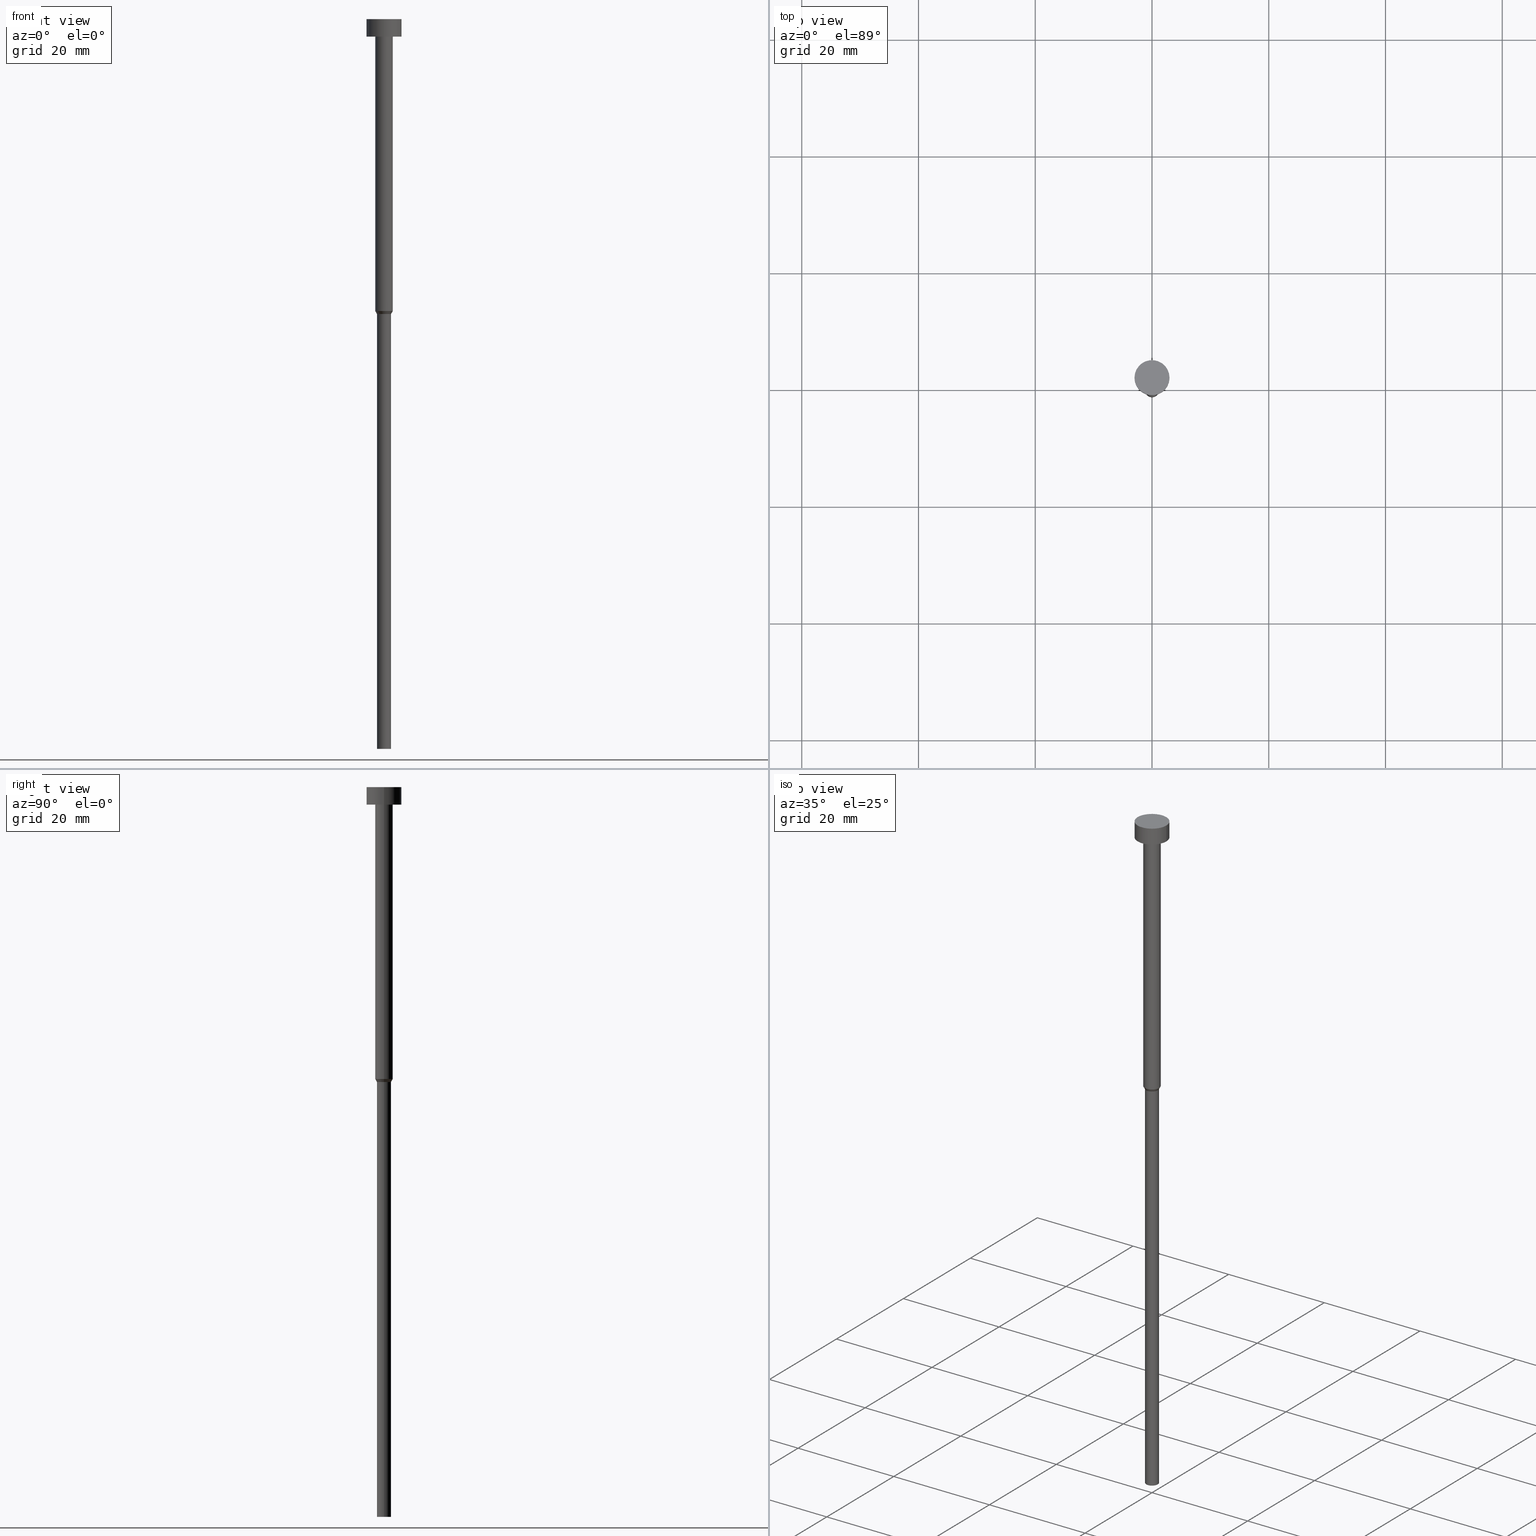
[diagram: canonical four-view strip — front | top / right | iso, engineering-drawing reading convention]
A machine part, canonical four-view strip (front | top / right | iso — engineering-drawing reading convention). The complete STEP part file that produces these views, byte-faithful:
ISO-10303-21;
HEADER;
FILE_DESCRIPTION (( 'STEP AP203' ),
    '1' );
FILE_NAME ('bd1f.STEP',
    '2023-02-13T10:02:56',
    ( '' ),
    ( '' ),
    'SwSTEP 2.0',
    'SolidWorks 2019',
    '' );
FILE_SCHEMA (( 'CONFIG_CONTROL_DESIGN' ));
ENDSEC;

DATA;
#1 = AXIS2_PLACEMENT_3D ( 'NONE', #103, #238, #317 ) ;
#2 = EDGE_CURVE ( 'NONE', #298, #13, #168, .T. ) ;
#3 = DIRECTION ( 'NONE',  ( 1.000000000000000000, 0.000000000000000000, 0.000000000000000000 ) ) ;
#4 = CARTESIAN_POINT ( 'NONE',  ( 3.000000000000000000, 0.000000000000000000, 0.000000000000000000 ) ) ;
#5 = APPROVAL_PERSON_ORGANIZATION ( #210, #174, #107 ) ;
#6 = APPROVAL_PERSON_ORGANIZATION ( #61, #14, #88 ) ;
#7 = VECTOR ( 'NONE', #93, 1000.000000000000000 ) ;
#8 = EDGE_CURVE ( 'NONE', #291, #344, #237, .T. ) ;
#9 = CC_DESIGN_PERSON_AND_ORGANIZATION_ASSIGNMENT ( #15, #232, ( #83 ) ) ;
#10 = DATE_AND_TIME ( #309, #94 ) ;
#11 = ADVANCED_FACE ( 'NONE', ( #209 ), #207, .T. ) ;
#12 = VECTOR ( 'NONE', #23, 1000.000000000000000 ) ;
#13 = VERTEX_POINT ( 'NONE', #215 ) ;
#14 = APPROVAL ( #261, 'NEUR�EN�' ) ;
#15 = PERSON_AND_ORGANIZATION ( #79, #155 ) ;
#16 = DIRECTION ( 'NONE',  ( 1.000000000000000000, 0.000000000000000000, 0.000000000000000000 ) ) ;
#17 = ORIENTED_EDGE ( 'NONE', *, *, #351, .F. ) ;
#18 =( NAMED_UNIT ( * ) SI_UNIT ( $, .STERADIAN. ) SOLID_ANGLE_UNIT ( ) );
#19 = CIRCLE ( 'NONE', #165, 1.500000000000000000 ) ;
#20 = ADVANCED_FACE ( 'NONE', ( #299, #301 ), #350, .T. ) ;
#21 = UNCERTAINTY_MEASURE_WITH_UNIT (LENGTH_MEASURE( 1.000000000000000082E-05 ), #62, 'distance_accuracy_value', 'NONE');
#22 = EDGE_LOOP ( 'NONE', ( #239, #273 ) ) ;
#23 = DIRECTION ( 'NONE',  ( -0.000000000000000000, -0.000000000000000000, 1.000000000000000000 ) ) ;
#24 = ORIENTED_EDGE ( 'NONE', *, *, #92, .F. ) ;
#25 = MECHANICAL_CONTEXT ( 'NONE', #147, 'mechanical' ) ;
#26 = CC_DESIGN_APPROVAL ( #48, ( #80 ) ) ;
#27 = DIRECTION ( 'NONE',  ( -0.000000000000000000, -0.000000000000000000, 1.000000000000000000 ) ) ;
#28 = AXIS2_PLACEMENT_3D ( 'NONE', #57, #161, #32 ) ;
#29 = FACE_OUTER_BOUND ( 'NONE', #68, .T. ) ;
#30 = COORDINATED_UNIVERSAL_TIME_OFFSET ( 1, 0, .AHEAD. ) ;
#31 = FACE_OUTER_BOUND ( 'NONE', #319, .T. ) ;
#32 = DIRECTION ( 'NONE',  ( 1.000000000000000000, 0.000000000000000000, 0.000000000000000000 ) ) ;
#33 = CARTESIAN_POINT ( 'NONE',  ( 0.000000000000000000, 0.000000000000000000, -50.00000000000000000 ) ) ;
#34 = CARTESIAN_POINT ( 'NONE',  ( 1.500000000000000000, 0.000000000000000000, 0.000000000000000000 ) ) ;
#35 = DIRECTION ( 'NONE',  ( -0.000000000000000000, -0.000000000000000000, 1.000000000000000000 ) ) ;
#36 = EDGE_CURVE ( 'NONE', #344, #180, #138, .T. ) ;
#37 = AXIS2_PLACEMENT_3D ( 'NONE', #285, #35, #228 ) ;
#38 = AXIS2_PLACEMENT_3D ( 'NONE', #33, #131, #134 ) ;
#39 = PRODUCT_DEFINITION_SHAPE ( 'NONE', 'NONE',  #59 ) ;
#40 = VERTEX_POINT ( 'NONE', #218 ) ;
#41 = PERSON_AND_ORGANIZATION_ROLE ( 'creator' ) ;
#42 = ORIENTED_EDGE ( 'NONE', *, *, #63, .F. ) ;
#43 = DATE_AND_TIME ( #202, #339 ) ;
#44 = DIRECTION ( 'NONE',  ( -0.000000000000000000, -0.000000000000000000, 1.000000000000000000 ) ) ;
#45 = ORIENTED_EDGE ( 'NONE', *, *, #314, .F. ) ;
#46 = LINE ( 'NONE', #243, #293 ) ;
#47 = CIRCLE ( 'NONE', #85, 3.000000000000000000 ) ;
#48 = APPROVAL ( #290, 'NEUR�EN�' ) ;
#49 = VERTEX_POINT ( 'NONE', #74 ) ;
#50 = ADVANCED_FACE ( 'NONE', ( #320 ), #154, .T. ) ;
#51 = FACE_OUTER_BOUND ( 'NONE', #172, .T. ) ;
#52 = PLANE ( 'NONE',  #82 ) ;
#53 = CARTESIAN_POINT ( 'NONE',  ( 0.000000000000000000, 0.000000000000000000, -3.000000000000000888 ) ) ;
#54 = CARTESIAN_POINT ( 'NONE',  ( 3.000000000000000000, 0.000000000000000000, -3.673940397442059868E-16 ) ) ;
#55 = CARTESIAN_POINT ( 'NONE',  ( 0.000000000000000000, 0.000000000000000000, -50.00000000000000000 ) ) ;
#56 = PERSON_AND_ORGANIZATION ( #79, #155 ) ;
#57 = CARTESIAN_POINT ( 'NONE',  ( 0.000000000000000000, 0.000000000000000000, -125.0000000000000000 ) ) ;
#58 = CARTESIAN_POINT ( 'NONE',  ( -1.500000000000000000, 1.836970198721029934E-16, -50.00000000000000000 ) ) ;
#59 = PRODUCT_DEFINITION ( 'NEZN�M�', '', #80, #69 ) ;
#60 = CC_DESIGN_SECURITY_CLASSIFICATION ( #275, ( #80 ) ) ;
#61 = PERSON_AND_ORGANIZATION ( #79, #155 ) ;
#62 =( LENGTH_UNIT ( ) NAMED_UNIT ( * ) SI_UNIT ( .MILLI., .METRE. ) );
#63 = EDGE_CURVE ( 'NONE', #119, #49, #191, .T. ) ;
#64 = CARTESIAN_POINT ( 'NONE',  ( 1.199999999999999956, 0.000000000000000000, -50.51961524227066747 ) ) ;
#65 = ORIENTED_EDGE ( 'NONE', *, *, #229, .F. ) ;
#66 =( GEOMETRIC_REPRESENTATION_CONTEXT ( 3 ) GLOBAL_UNCERTAINTY_ASSIGNED_CONTEXT ( ( #21 ) ) GLOBAL_UNIT_ASSIGNED_CONTEXT ( ( #62, #123, #18 ) ) REPRESENTATION_CONTEXT ( 'NONE', 'WORKASPACE' ) );
#67 = AXIS2_PLACEMENT_3D ( 'NONE', #127, #184, #345 ) ;
#68 = EDGE_LOOP ( 'NONE', ( #90, #176, #334, #266 ) ) ;
#69 = DESIGN_CONTEXT ( 'detailed design', #167, 'design' ) ;
#70 = ORIENTED_EDGE ( 'NONE', *, *, #255, .T. ) ;
#71 = ORIENTED_EDGE ( 'NONE', *, *, #229, .T. ) ;
#72 = ADVANCED_FACE ( 'NONE', ( #322 ), #302, .T. ) ;
#73 = CARTESIAN_POINT ( 'NONE',  ( 0.000000000000000000, 0.000000000000000000, 0.000000000000000000 ) ) ;
#74 = CARTESIAN_POINT ( 'NONE',  ( -3.000000000000000000, 3.673940397442059868E-16, -3.673940397442059868E-16 ) ) ;
#75 = DIRECTION ( 'NONE',  ( 1.000000000000000000, 0.000000000000000000, 0.000000000000000000 ) ) ;
#76 = DIRECTION ( 'NONE',  ( -0.000000000000000000, -0.000000000000000000, 1.000000000000000000 ) ) ;
#77 = ADVANCED_FACE ( 'NONE', ( #51 ), #120, .T. ) ;
#78 = CARTESIAN_POINT ( 'NONE',  ( 3.000000000000000000, 0.000000000000000000, -3.000000000000000888 ) ) ;
#79 = PERSON ( 'NEUR�EN�', 'NEUR�EN�', 'NEUR�EN�', ('NEUR�EN�'), ('NEUR�EN�'), ('NEUR�EN�') ) ;
#80 = PRODUCT_DEFINITION_FORMATION_WITH_SPECIFIED_SOURCE ( 'LIBOVOLN�', '', #83, .NOT_KNOWN. ) ;
#81 = DIRECTION ( 'NONE',  ( -0.000000000000000000, -0.000000000000000000, 1.000000000000000000 ) ) ;
#82 = AXIS2_PLACEMENT_3D ( 'NONE', #156, #153, #274 ) ;
#83 = PRODUCT ( 'bd1f', 'bd1f', '', ( #25 ) ) ;
#84 = DATE_AND_TIME ( #139, #188 ) ;
#85 = AXIS2_PLACEMENT_3D ( 'NONE', #277, #130, #253 ) ;
#86 = COORDINATED_UNIVERSAL_TIME_OFFSET ( 1, 0, .AHEAD. ) ;
#87 = ORIENTED_EDGE ( 'NONE', *, *, #351, .T. ) ;
#88 = APPROVAL_ROLE ( '' ) ;
#89 = PERSON_AND_ORGANIZATION ( #79, #155 ) ;
#90 = ORIENTED_EDGE ( 'NONE', *, *, #102, .F. ) ;
#91 = ORIENTED_EDGE ( 'NONE', *, *, #279, .T. ) ;
#92 = EDGE_CURVE ( 'NONE', #117, #291, #193, .T. ) ;
#93 = DIRECTION ( 'NONE',  ( -0.000000000000000000, -0.000000000000000000, 1.000000000000000000 ) ) ;
#94 = LOCAL_TIME ( 11, 2, 56.00000000000000000, #86 ) ;
#95 = EDGE_CURVE ( 'NONE', #13, #298, #269, .T. ) ;
#96 = VECTOR ( 'NONE', #280, 1000.000000000000114 ) ;
#97 = ORIENTED_EDGE ( 'NONE', *, *, #162, .F. ) ;
#98 = DIRECTION ( 'NONE',  ( 1.000000000000000000, 0.000000000000000000, 0.000000000000000000 ) ) ;
#99 = DATE_TIME_ROLE ( 'classification_date' ) ;
#100 = EDGE_LOOP ( 'NONE', ( #312, #342, #145, #150 ) ) ;
#101 = CARTESIAN_POINT ( 'NONE',  ( 0.000000000000000000, 0.000000000000000000, 0.000000000000000000 ) ) ;
#102 = EDGE_CURVE ( 'NONE', #13, #117, #353, .T. ) ;
#103 = CARTESIAN_POINT ( 'NONE',  ( 0.000000000000000000, 0.000000000000000000, -3.000000000000000888 ) ) ;
#104 = AXIS2_PLACEMENT_3D ( 'NONE', #306, #220, #185 ) ;
#105 = SECURITY_CLASSIFICATION_LEVEL ( 'unclassified' ) ;
#106 = DIRECTION ( 'NONE',  ( 0.000000000000000000, 0.000000000000000000, -1.000000000000000000 ) ) ;
#107 = APPROVAL_ROLE ( '' ) ;
#108 = CARTESIAN_POINT ( 'NONE',  ( 0.000000000000000000, 0.000000000000000000, 0.000000000000000000 ) ) ;
#109 = CYLINDRICAL_SURFACE ( 'NONE', #303, 1.199999999999999956 ) ;
#110 = CARTESIAN_POINT ( 'NONE',  ( 0.000000000000000000, 0.000000000000000000, 0.000000000000000000 ) ) ;
#111 = CONICAL_SURFACE ( 'NONE', #38, 1.500000000000000000, 0.5235987755982992597 ) ;
#112 = CC_DESIGN_PERSON_AND_ORGANIZATION_ASSIGNMENT ( #235, #337, ( #80 ) ) ;
#113 = DIRECTION ( 'NONE',  ( 1.000000000000000000, 0.000000000000000000, 0.000000000000000000 ) ) ;
#114 = APPROVAL_DATE_TIME ( #10, #14 ) ;
#115 = ORIENTED_EDGE ( 'NONE', *, *, #171, .T. ) ;
#116 = CARTESIAN_POINT ( 'NONE',  ( 0.000000000000000000, 0.000000000000000000, 0.000000000000000000 ) ) ;
#117 = VERTEX_POINT ( 'NONE', #304 ) ;
#118 = DIRECTION ( 'NONE',  ( 1.000000000000000000, 0.000000000000000000, 0.000000000000000000 ) ) ;
#119 = VERTEX_POINT ( 'NONE', #54 ) ;
#120 = CONICAL_SURFACE ( 'NONE', #140, 1.500000000000000000, 0.5235987755982992597 ) ;
#121 = ADVANCED_FACE ( 'NONE', ( #29 ), #109, .T. ) ;
#122 = ORIENTED_EDGE ( 'NONE', *, *, #255, .F. ) ;
#123 =( NAMED_UNIT ( * ) PLANE_ANGLE_UNIT ( ) SI_UNIT ( $, .RADIAN. ) );
#124 = EDGE_LOOP ( 'NONE', ( #122, #17 ) ) ;
#125 = VERTEX_POINT ( 'NONE', #78 ) ;
#126 = DIRECTION ( 'NONE',  ( 1.000000000000000000, 0.000000000000000000, 0.000000000000000000 ) ) ;
#127 = CARTESIAN_POINT ( 'NONE',  ( 0.000000000000000000, 0.000000000000000000, -1.836970198721029934E-16 ) ) ;
#128 = VECTOR ( 'NONE', #133, 1000.000000000000000 ) ;
#129 = DIRECTION ( 'NONE',  ( -1.000000000000000000, 0.000000000000000000, -0.000000000000000000 ) ) ;
#130 = DIRECTION ( 'NONE',  ( -0.000000000000000000, -0.000000000000000000, 1.000000000000000000 ) ) ;
#131 = DIRECTION ( 'NONE',  ( -0.000000000000000000, -0.000000000000000000, 1.000000000000000000 ) ) ;
#132 = DATE_AND_TIME ( #160, #315 ) ;
#133 = DIRECTION ( 'NONE',  ( -0.000000000000000000, -0.000000000000000000, 1.000000000000000000 ) ) ;
#134 = DIRECTION ( 'NONE',  ( 1.000000000000000000, 0.000000000000000000, 0.000000000000000000 ) ) ;
#135 = AXIS2_PLACEMENT_3D ( 'NONE', #101, #242, #126 ) ;
#136 = SHAPE_DEFINITION_REPRESENTATION ( #39, #231 ) ;
#137 = CC_DESIGN_APPROVAL ( #14, ( #59 ) ) ;
#138 = CIRCLE ( 'NONE', #260, 1.500000000000000000 ) ;
#139 = CALENDAR_DATE ( 2023, 13, 2 ) ;
#140 = AXIS2_PLACEMENT_3D ( 'NONE', #55, #76, #163 ) ;
#141 = VERTEX_POINT ( 'NONE', #305 ) ;
#142 = PERSON_AND_ORGANIZATION ( #79, #155 ) ;
#143 = CARTESIAN_POINT ( 'NONE',  ( 0.000000000000000000, 0.000000000000000000, -125.0000000000000000 ) ) ;
#144 = CYLINDRICAL_SURFACE ( 'NONE', #149, 1.500000000000000000 ) ;
#145 = ORIENTED_EDGE ( 'NONE', *, *, #314, .T. ) ;
#146 = ORIENTED_EDGE ( 'NONE', *, *, #216, .F. ) ;
#147 = APPLICATION_CONTEXT ( 'configuration controlled 3d designs of mechanical parts and assemblies' ) ;
#148 = ORIENTED_EDGE ( 'NONE', *, *, #216, .T. ) ;
#149 = AXIS2_PLACEMENT_3D ( 'NONE', #116, #44, #118 ) ;
#150 = ORIENTED_EDGE ( 'NONE', *, *, #36, .F. ) ;
#151 = APPROVAL_ROLE ( '' ) ;
#152 = CARTESIAN_POINT ( 'NONE',  ( 0.000000000000000000, 0.000000000000000000, -3.673940397442059868E-16 ) ) ;
#153 = DIRECTION ( 'NONE',  ( 0.000000000000000000, 0.000000000000000000, -1.000000000000000000 ) ) ;
#154 = CYLINDRICAL_SURFACE ( 'NONE', #157, 1.199999999999999956 ) ;
#155 = ORGANIZATION ( 'NEUR�EN�', 'NEUR�EN�', '' ) ;
#156 = CARTESIAN_POINT ( 'NONE',  ( 0.000000000000000000, 0.000000000000000000, -125.0000000000000000 ) ) ;
#157 = AXIS2_PLACEMENT_3D ( 'NONE', #108, #276, #252 ) ;
#158 = ADVANCED_FACE ( 'NONE', ( #31 ), #111, .T. ) ;
#159 = CARTESIAN_POINT ( 'NONE',  ( 0.000000000000000000, 0.000000000000000000, 0.000000000000000000 ) ) ;
#160 = CALENDAR_DATE ( 2023, 13, 2 ) ;
#161 = DIRECTION ( 'NONE',  ( -0.000000000000000000, -0.000000000000000000, 1.000000000000000000 ) ) ;
#162 = EDGE_CURVE ( 'NONE', #338, #117, #263, .T. ) ;
#163 = DIRECTION ( 'NONE',  ( 1.000000000000000000, 0.000000000000000000, 0.000000000000000000 ) ) ;
#164 = VECTOR ( 'NONE', #332, 1000.000000000000000 ) ;
#165 = AXIS2_PLACEMENT_3D ( 'NONE', #254, #326, #300 ) ;
#166 = DIRECTION ( 'NONE',  ( 1.000000000000000000, 0.000000000000000000, 0.000000000000000000 ) ) ;
#167 = APPLICATION_CONTEXT ( 'configuration controlled 3d designs of mechanical parts and assemblies' ) ;
#168 = CIRCLE ( 'NONE', #197, 1.199999999999999956 ) ;
#169 = CC_DESIGN_DATE_AND_TIME_ASSIGNMENT ( #84, #289, ( #59 ) ) ;
#170 = COORDINATED_UNIVERSAL_TIME_OFFSET ( 1, 0, .AHEAD. ) ;
#171 = EDGE_CURVE ( 'NONE', #141, #291, #287, .T. ) ;
#172 = EDGE_LOOP ( 'NONE', ( #316, #204, #203, #205 ) ) ;
#173 = APPROVAL_PERSON_ORGANIZATION ( #142, #48, #151 ) ;
#174 = APPROVAL ( #348, 'NEUR�EN�' ) ;
#175 = EDGE_LOOP ( 'NONE', ( #65, #87, #181, #146 ) ) ;
#176 = ORIENTED_EDGE ( 'NONE', *, *, #95, .T. ) ;
#177 = EDGE_LOOP ( 'NONE', ( #70, #71, #42, #294 ) ) ;
#178 = EDGE_CURVE ( 'NONE', #125, #119, #257, .T. ) ;
#179 = PERSON_AND_ORGANIZATION_ROLE ( 'classification_officer' ) ;
#180 = VERTEX_POINT ( 'NONE', #189 ) ;
#181 = ORIENTED_EDGE ( 'NONE', *, *, #178, .T. ) ;
#182 = DIRECTION ( 'NONE',  ( -0.000000000000000000, -0.000000000000000000, 1.000000000000000000 ) ) ;
#183 = FACE_OUTER_BOUND ( 'NONE', #22, .T. ) ;
#184 = DIRECTION ( 'NONE',  ( 0.000000000000000000, -0.000000000000000000, 1.000000000000000000 ) ) ;
#185 = DIRECTION ( 'NONE',  ( 1.000000000000000000, 0.000000000000000000, 0.000000000000000000 ) ) ;
#186 = DIRECTION ( 'NONE',  ( 1.000000000000000000, 0.000000000000000000, 0.000000000000000000 ) ) ;
#187 = PRODUCT_RELATED_PRODUCT_CATEGORY ( 'detail', '', ( #83 ) ) ;
#188 = LOCAL_TIME ( 11, 2, 56.00000000000000000, #170 ) ;
#189 = CARTESIAN_POINT ( 'NONE',  ( 1.500000000000000000, 0.000000000000000000, -3.000000000000000888 ) ) ;
#190 = CYLINDRICAL_SURFACE ( 'NONE', #230, 1.500000000000000000 ) ;
#191 = CIRCLE ( 'NONE', #282, 3.000000000000000000 ) ;
#192 = PERSON_AND_ORGANIZATION_ROLE ( 'design_supplier' ) ;
#193 = LINE ( 'NONE', #58, #96 ) ;
#194 = CARTESIAN_POINT ( 'NONE',  ( 0.000000000000000000, 0.000000000000000000, -50.00000000000000000 ) ) ;
#195 = MANIFOLD_SOLID_BREP ( 'Rotovat1', #270 ) ;
#196 = LOCAL_TIME ( 11, 2, 56.00000000000000000, #30 ) ;
#197 = AXIS2_PLACEMENT_3D ( 'NONE', #143, #265, #16 ) ;
#198 = LINE ( 'NONE', #296, #12 ) ;
#199 = EDGE_CURVE ( 'NONE', #291, #141, #19, .T. ) ;
#200 = ADVANCED_FACE ( 'NONE', ( #183 ), #52, .T. ) ;
#201 = LINE ( 'NONE', #288, #164 ) ;
#202 = CALENDAR_DATE ( 2023, 13, 2 ) ;
#203 = ORIENTED_EDGE ( 'NONE', *, *, #171, .F. ) ;
#204 = ORIENTED_EDGE ( 'NONE', *, *, #92, .T. ) ;
#205 = ORIENTED_EDGE ( 'NONE', *, *, #279, .F. ) ;
#206 = AXIS2_PLACEMENT_3D ( 'NONE', #73, #182, #245 ) ;
#207 = PLANE ( 'NONE',  #67 ) ;
#208 = VECTOR ( 'NONE', #292, 1000.000000000000000 ) ;
#209 = FACE_OUTER_BOUND ( 'NONE', #340, .T. ) ;
#210 = PERSON_AND_ORGANIZATION ( #79, #155 ) ;
#211 = ORIENTED_EDGE ( 'NONE', *, *, #247, .T. ) ;
#212 = DIRECTION ( 'NONE',  ( 0.5000000000000003331, 0.000000000000000000, 0.8660254037844383745 ) ) ;
#213 = ORIENTED_EDGE ( 'NONE', *, *, #247, .F. ) ;
#214 = CC_DESIGN_APPROVAL ( #174, ( #275 ) ) ;
#215 = CARTESIAN_POINT ( 'NONE',  ( -1.199999999999999956, 1.469576158976823553E-16, -125.0000000000000000 ) ) ;
#216 = EDGE_CURVE ( 'NONE', #49, #119, #222, .T. ) ;
#217 = COORDINATED_UNIVERSAL_TIME_OFFSET ( 1, 0, .AHEAD. ) ;
#218 = CARTESIAN_POINT ( 'NONE',  ( -3.000000000000000000, 3.673940397442059868E-16, -3.000000000000000888 ) ) ;
#219 = DIRECTION ( 'NONE',  ( -0.000000000000000000, -0.000000000000000000, 1.000000000000000000 ) ) ;
#220 = DIRECTION ( 'NONE',  ( -0.000000000000000000, -0.000000000000000000, 1.000000000000000000 ) ) ;
#221 = CIRCLE ( 'NONE', #37, 3.000000000000000000 ) ;
#222 = CIRCLE ( 'NONE', #311, 3.000000000000000000 ) ;
#223 = CARTESIAN_POINT ( 'NONE',  ( -1.199999999999999956, 1.469576158976823553E-16, 0.000000000000000000 ) ) ;
#224 = DIRECTION ( 'NONE',  ( -0.000000000000000000, -0.000000000000000000, 1.000000000000000000 ) ) ;
#225 = FACE_OUTER_BOUND ( 'NONE', #177, .T. ) ;
#226 = CARTESIAN_POINT ( 'NONE',  ( 1.199999999999999956, 0.000000000000000000, -125.0000000000000000 ) ) ;
#227 = CIRCLE ( 'NONE', #328, 1.199999999999999956 ) ;
#228 = DIRECTION ( 'NONE',  ( 1.000000000000000000, 0.000000000000000000, 0.000000000000000000 ) ) ;
#229 = EDGE_CURVE ( 'NONE', #40, #49, #198, .T. ) ;
#230 = AXIS2_PLACEMENT_3D ( 'NONE', #283, #258, #113 ) ;
#231 = ADVANCED_BREP_SHAPE_REPRESENTATION ( 'bd1f', ( #195, #135 ), #66 ) ;
#232 = PERSON_AND_ORGANIZATION_ROLE ( 'design_owner' ) ;
#233 = COORDINATED_UNIVERSAL_TIME_OFFSET ( 1, 0, .AHEAD. ) ;
#234 = ORIENTED_EDGE ( 'NONE', *, *, #36, .T. ) ;
#235 = PERSON_AND_ORGANIZATION ( #79, #155 ) ;
#236 = ORIENTED_EDGE ( 'NONE', *, *, #2, .T. ) ;
#237 = LINE ( 'NONE', #318, #7 ) ;
#238 = DIRECTION ( 'NONE',  ( -0.000000000000000000, -0.000000000000000000, 1.000000000000000000 ) ) ;
#239 = ORIENTED_EDGE ( 'NONE', *, *, #2, .F. ) ;
#240 = ORIENTED_EDGE ( 'NONE', *, *, #63, .T. ) ;
#241 = ORIENTED_EDGE ( 'NONE', *, *, #325, .F. ) ;
#242 = DIRECTION ( 'NONE',  ( 0.000000000000000000, 0.000000000000000000, 1.000000000000000000 ) ) ;
#243 = CARTESIAN_POINT ( 'NONE',  ( 1.500000000000000000, 0.000000000000000000, -50.00000000000000000 ) ) ;
#244 = FACE_OUTER_BOUND ( 'NONE', #100, .T. ) ;
#245 = DIRECTION ( 'NONE',  ( 1.000000000000000000, 0.000000000000000000, 0.000000000000000000 ) ) ;
#246 = ADVANCED_FACE ( 'NONE', ( #244 ), #144, .T. ) ;
#247 = EDGE_CURVE ( 'NONE', #180, #344, #349, .T. ) ;
#248 = CARTESIAN_POINT ( 'NONE',  ( 0.000000000000000000, -3.000000000000000000, -3.000000000000000888 ) ) ;
#249 = AXIS2_PLACEMENT_3D ( 'NONE', #194, #27, #281 ) ;
#250 = CARTESIAN_POINT ( 'NONE',  ( 0.000000000000000000, 0.000000000000000000, -3.673940397442059868E-16 ) ) ;
#251 = CC_DESIGN_DATE_AND_TIME_ASSIGNMENT ( #132, #99, ( #275 ) ) ;
#252 = DIRECTION ( 'NONE',  ( 1.000000000000000000, 0.000000000000000000, 0.000000000000000000 ) ) ;
#253 = DIRECTION ( 'NONE',  ( 1.000000000000000000, 0.000000000000000000, 0.000000000000000000 ) ) ;
#254 = CARTESIAN_POINT ( 'NONE',  ( 0.000000000000000000, 0.000000000000000000, -50.00000000000000000 ) ) ;
#255 = EDGE_CURVE ( 'NONE', #125, #40, #47, .T. ) ;
#256 = AXIS2_PLACEMENT_3D ( 'NONE', #110, #81, #166 ) ;
#257 = LINE ( 'NONE', #4, #323 ) ;
#258 = DIRECTION ( 'NONE',  ( -0.000000000000000000, -0.000000000000000000, 1.000000000000000000 ) ) ;
#259 = CARTESIAN_POINT ( 'NONE',  ( -1.500000000000000000, 1.836970198721029934E-16, -3.000000000000000888 ) ) ;
#260 = AXIS2_PLACEMENT_3D ( 'NONE', #53, #352, #75 ) ;
#261 = APPROVAL_STATUS ( 'not_yet_approved' ) ;
#262 = DIRECTION ( 'NONE',  ( 1.000000000000000000, 0.000000000000000000, 0.000000000000000000 ) ) ;
#263 = CIRCLE ( 'NONE', #104, 1.199999999999999956 ) ;
#264 = ORIENTED_EDGE ( 'NONE', *, *, #199, .F. ) ;
#265 = DIRECTION ( 'NONE',  ( -0.000000000000000000, -0.000000000000000000, 1.000000000000000000 ) ) ;
#266 = ORIENTED_EDGE ( 'NONE', *, *, #272, .F. ) ;
#267 = CARTESIAN_POINT ( 'NONE',  ( 0.000000000000000000, 0.000000000000000000, -50.51961524227066747 ) ) ;
#268 = CC_DESIGN_PERSON_AND_ORGANIZATION_ASSIGNMENT ( #329, #41, ( #59 ) ) ;
#269 = CIRCLE ( 'NONE', #28, 1.199999999999999956 ) ;
#270 = CLOSED_SHELL ( 'NONE', ( #310, #286, #77, #50, #200, #121, #158, #246, #20, #72, #11 ) ) ;
#271 = EDGE_LOOP ( 'NONE', ( #211, #234 ) ) ;
#272 = EDGE_CURVE ( 'NONE', #117, #338, #227, .T. ) ;
#273 = ORIENTED_EDGE ( 'NONE', *, *, #95, .F. ) ;
#274 = DIRECTION ( 'NONE',  ( -1.000000000000000000, 0.000000000000000000, -0.000000000000000000 ) ) ;
#275 = SECURITY_CLASSIFICATION ( '', '', #105 ) ;
#276 = DIRECTION ( 'NONE',  ( -0.000000000000000000, -0.000000000000000000, 1.000000000000000000 ) ) ;
#277 = CARTESIAN_POINT ( 'NONE',  ( 0.000000000000000000, 0.000000000000000000, -3.000000000000000888 ) ) ;
#278 = CALENDAR_DATE ( 2023, 13, 2 ) ;
#279 = EDGE_CURVE ( 'NONE', #338, #141, #46, .T. ) ;
#280 = DIRECTION ( 'NONE',  ( -0.5000000000000003331, 6.123233995736769734E-17, 0.8660254037844383745 ) ) ;
#281 = DIRECTION ( 'NONE',  ( 1.000000000000000000, 0.000000000000000000, 0.000000000000000000 ) ) ;
#282 = AXIS2_PLACEMENT_3D ( 'NONE', #152, #219, #186 ) ;
#283 = CARTESIAN_POINT ( 'NONE',  ( 0.000000000000000000, 0.000000000000000000, 0.000000000000000000 ) ) ;
#284 = LINE ( 'NONE', #34, #208 ) ;
#285 = CARTESIAN_POINT ( 'NONE',  ( 0.000000000000000000, 0.000000000000000000, -3.000000000000000888 ) ) ;
#286 = ADVANCED_FACE ( 'NONE', ( #347 ), #190, .T. ) ;
#287 = CIRCLE ( 'NONE', #249, 1.500000000000000000 ) ;
#288 = CARTESIAN_POINT ( 'NONE',  ( 1.199999999999999956, 0.000000000000000000, 0.000000000000000000 ) ) ;
#289 = DATE_TIME_ROLE ( 'creation_date' ) ;
#290 = APPROVAL_STATUS ( 'not_yet_approved' ) ;
#291 = VERTEX_POINT ( 'NONE', #308 ) ;
#292 = DIRECTION ( 'NONE',  ( -0.000000000000000000, -0.000000000000000000, 1.000000000000000000 ) ) ;
#293 = VECTOR ( 'NONE', #212, 1000.000000000000114 ) ;
#294 = ORIENTED_EDGE ( 'NONE', *, *, #178, .F. ) ;
#295 = ORIENTED_EDGE ( 'NONE', *, *, #8, .T. ) ;
#296 = CARTESIAN_POINT ( 'NONE',  ( -3.000000000000000000, 3.673940397442059868E-16, 0.000000000000000000 ) ) ;
#297 = EDGE_LOOP ( 'NONE', ( #115, #295, #213, #45 ) ) ;
#298 = VERTEX_POINT ( 'NONE', #226 ) ;
#299 = FACE_BOUND ( 'NONE', #271, .T. ) ;
#300 = DIRECTION ( 'NONE',  ( 1.000000000000000000, 0.000000000000000000, 0.000000000000000000 ) ) ;
#301 = FACE_OUTER_BOUND ( 'NONE', #124, .T. ) ;
#302 = CYLINDRICAL_SURFACE ( 'NONE', #206, 3.000000000000000000 ) ;
#303 = AXIS2_PLACEMENT_3D ( 'NONE', #159, #324, #3 ) ;
#304 = CARTESIAN_POINT ( 'NONE',  ( -1.199999999999999956, 1.469576158976823553E-16, -50.51961524227066747 ) ) ;
#305 = CARTESIAN_POINT ( 'NONE',  ( 1.500000000000000000, 0.000000000000000000, -50.00000000000000000 ) ) ;
#306 = CARTESIAN_POINT ( 'NONE',  ( 0.000000000000000000, 0.000000000000000000, -50.51961524227066747 ) ) ;
#307 = CC_DESIGN_PERSON_AND_ORGANIZATION_ASSIGNMENT ( #56, #179, ( #275 ) ) ;
#308 = CARTESIAN_POINT ( 'NONE',  ( -1.500000000000000000, 1.836970198721029934E-16, -50.00000000000000000 ) ) ;
#309 = CALENDAR_DATE ( 2023, 13, 2 ) ;
#310 = ADVANCED_FACE ( 'NONE', ( #225 ), #327, .T. ) ;
#311 = AXIS2_PLACEMENT_3D ( 'NONE', #250, #355, #262 ) ;
#312 = ORIENTED_EDGE ( 'NONE', *, *, #8, .F. ) ;
#313 = ORIENTED_EDGE ( 'NONE', *, *, #272, .T. ) ;
#314 = EDGE_CURVE ( 'NONE', #141, #180, #284, .T. ) ;
#315 = LOCAL_TIME ( 11, 2, 56.00000000000000000, #217 ) ;
#316 = ORIENTED_EDGE ( 'NONE', *, *, #162, .T. ) ;
#317 = DIRECTION ( 'NONE',  ( 1.000000000000000000, 0.000000000000000000, 0.000000000000000000 ) ) ;
#318 = CARTESIAN_POINT ( 'NONE',  ( -1.500000000000000000, 1.836970198721029934E-16, 0.000000000000000000 ) ) ;
#319 = EDGE_LOOP ( 'NONE', ( #24, #313, #91, #264 ) ) ;
#320 = FACE_OUTER_BOUND ( 'NONE', #333, .T. ) ;
#321 = DATE_AND_TIME ( #278, #196 ) ;
#322 = FACE_OUTER_BOUND ( 'NONE', #175, .T. ) ;
#323 = VECTOR ( 'NONE', #224, 1000.000000000000000 ) ;
#324 = DIRECTION ( 'NONE',  ( -0.000000000000000000, -0.000000000000000000, 1.000000000000000000 ) ) ;
#325 = EDGE_CURVE ( 'NONE', #298, #338, #201, .T. ) ;
#326 = DIRECTION ( 'NONE',  ( -0.000000000000000000, -0.000000000000000000, 1.000000000000000000 ) ) ;
#327 = CYLINDRICAL_SURFACE ( 'NONE', #256, 3.000000000000000000 ) ;
#328 = AXIS2_PLACEMENT_3D ( 'NONE', #267, #343, #98 ) ;
#329 = PERSON_AND_ORGANIZATION ( #79, #155 ) ;
#330 = CC_DESIGN_PERSON_AND_ORGANIZATION_ASSIGNMENT ( #89, #192, ( #80 ) ) ;
#331 = APPROVAL_DATE_TIME ( #43, #48 ) ;
#332 = DIRECTION ( 'NONE',  ( -0.000000000000000000, -0.000000000000000000, 1.000000000000000000 ) ) ;
#333 = EDGE_LOOP ( 'NONE', ( #236, #335, #97, #241 ) ) ;
#334 = ORIENTED_EDGE ( 'NONE', *, *, #325, .T. ) ;
#335 = ORIENTED_EDGE ( 'NONE', *, *, #102, .T. ) ;
#336 = APPLICATION_PROTOCOL_DEFINITION ( 'international standard', 'config_control_design', 1994, #167 ) ;
#337 = PERSON_AND_ORGANIZATION_ROLE ( 'creator' ) ;
#338 = VERTEX_POINT ( 'NONE', #64 ) ;
#339 = LOCAL_TIME ( 11, 2, 56.00000000000000000, #233 ) ;
#340 = EDGE_LOOP ( 'NONE', ( #240, #148 ) ) ;
#341 = AXIS2_PLACEMENT_3D ( 'NONE', #248, #106, #129 ) ;
#342 = ORIENTED_EDGE ( 'NONE', *, *, #199, .T. ) ;
#343 = DIRECTION ( 'NONE',  ( -0.000000000000000000, -0.000000000000000000, 1.000000000000000000 ) ) ;
#344 = VERTEX_POINT ( 'NONE', #259 ) ;
#345 = DIRECTION ( 'NONE',  ( 1.000000000000000000, 0.000000000000000000, 0.000000000000000000 ) ) ;
#346 = APPLICATION_PROTOCOL_DEFINITION ( 'international standard', 'config_control_design', 1994, #147 ) ;
#347 = FACE_OUTER_BOUND ( 'NONE', #297, .T. ) ;
#348 = APPROVAL_STATUS ( 'not_yet_approved' ) ;
#349 = CIRCLE ( 'NONE', #1, 1.500000000000000000 ) ;
#350 = PLANE ( 'NONE',  #341 ) ;
#351 = EDGE_CURVE ( 'NONE', #40, #125, #221, .T. ) ;
#352 = DIRECTION ( 'NONE',  ( -0.000000000000000000, -0.000000000000000000, 1.000000000000000000 ) ) ;
#353 = LINE ( 'NONE', #223, #128 ) ;
#354 = APPROVAL_DATE_TIME ( #321, #174 ) ;
#355 = DIRECTION ( 'NONE',  ( -0.000000000000000000, -0.000000000000000000, 1.000000000000000000 ) ) ;
ENDSEC;
END-ISO-10303-21;
